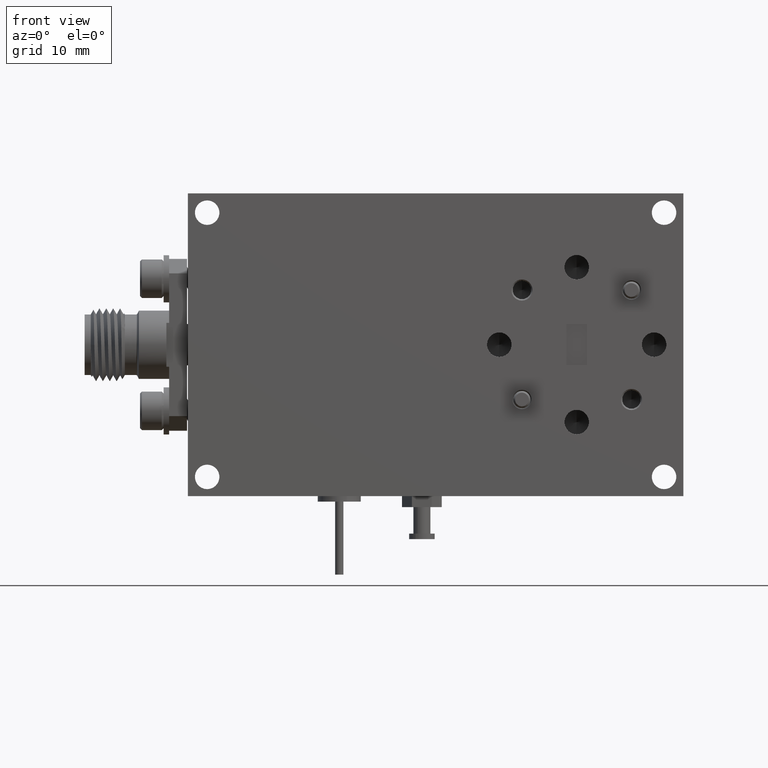
[diagram: clean part render]
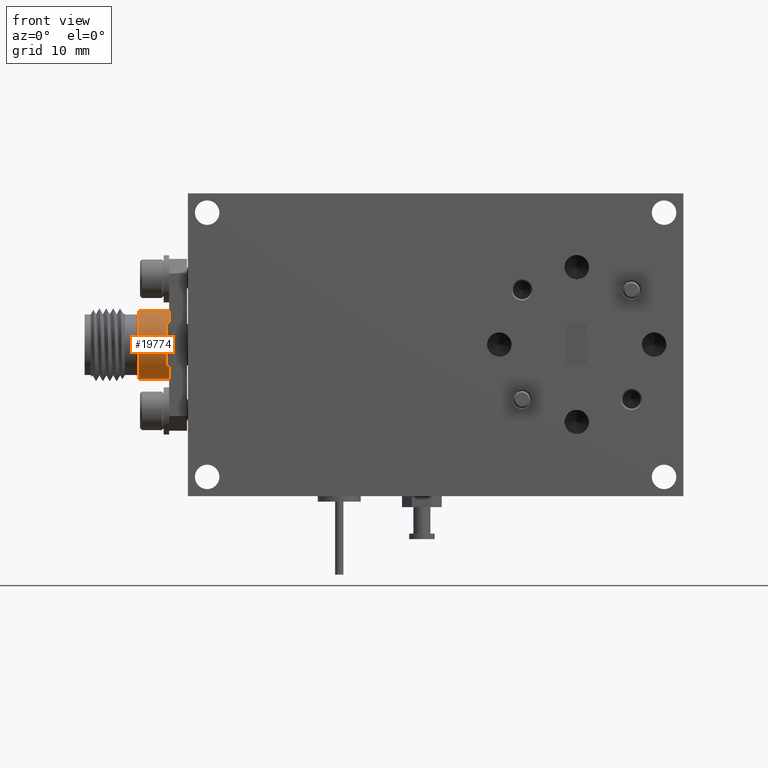
[diagram: same view with one face highlighted and labeled with its STEP entity id]
A machine part, front view. The second image highlights one B-rep face of the part: STEP entity #19774.
In plain terms, the highlighted cylindrical surface (edge-blend (fillet) strip) has radius 3.1496 mm, axis along (1, -0, -0).
Its self-contained STEP definition (entity closure, byte-faithful):
#63 = VECTOR ( 'NONE', #16802, 39.37007874015748100 ) ;
#252 = ORIENTED_EDGE ( 'NONE', *, *, #10622, .T. ) ;
#484 = LINE ( 'NONE', #10296, #23290 ) ;
#545 = AXIS2_PLACEMENT_3D ( 'NONE', #10329, #21840, #15262 ) ;
#764 = CARTESIAN_POINT ( 'NONE',  ( -1.088000000000000300, 0.2500000000000003900, -0.1240000000000001800 ) ) ;
#1017 = DIRECTION ( 'NONE',  ( 0.0000000000000000000, 0.0000000000000000000, 1.000000000000000000 ) ) ;
#1118 = DIRECTION ( 'NONE',  ( 1.000000000000000000, -1.110223024625162000E-016, -1.595945597898664000E-016 ) ) ;
#1374 = EDGE_CURVE ( 'NONE', #27436, #22943, #9861, .T. ) ;
#1703 = ORIENTED_EDGE ( 'NONE', *, *, #11419, .T. ) ;
#1708 = VERTEX_POINT ( 'NONE', #17510 ) ;
#2512 = DIRECTION ( 'NONE',  ( 0.0000000000000000000, 0.0000000000000000000, 1.000000000000000000 ) ) ;
#3259 = CARTESIAN_POINT ( 'NONE',  ( -1.078000000000000300, 0.2500000000000003900, 0.1240000000000000700 ) ) ;
#3465 = VECTOR ( 'NONE', #12232, 39.37007874015748100 ) ;
#3929 = CARTESIAN_POINT ( 'NONE',  ( -0.9680000000000005300, 0.2500000000000003900, 6.874722794536055900E-017 ) ) ;
#4830 = ORIENTED_EDGE ( 'NONE', *, *, #18331, .F. ) ;
#5823 = CARTESIAN_POINT ( 'NONE',  ( -0.9780000000000002000, 0.1550000000000000500, 0.07969316156358732800 ) ) ;
#6394 = CIRCLE ( 'NONE', #545, 0.1240000000000002500 ) ;
#7707 = EDGE_CURVE ( 'NONE', #10244, #29496, #6394, .T. ) ;
#8097 = CIRCLE ( 'NONE', #11469, 0.1240000000000002500 ) ;
#9250 = ORIENTED_EDGE ( 'NONE', *, *, #24281, .T. ) ;
#9463 = CARTESIAN_POINT ( 'NONE',  ( -1.078000000000000300, 0.2500000000000003900, -0.1239999999999999300 ) ) ;
#9861 = LINE ( 'NONE', #764, #3465 ) ;
#10244 = VERTEX_POINT ( 'NONE', #29063 ) ;
#10279 = CARTESIAN_POINT ( 'NONE',  ( -0.9680000000000005300, 0.1550000000000000500, 0.07969316156358732800 ) ) ;
#10296 = CARTESIAN_POINT ( 'NONE',  ( -0.9780000000000002000, 0.1550000000000000500, -0.07969316156358705000 ) ) ;
#10329 = CARTESIAN_POINT ( 'NONE',  ( -0.9780000000000002000, 0.2500000000000003900, 6.881661688439961800E-017 ) ) ;
#10622 = EDGE_CURVE ( 'NONE', #18508, #23821, #18206, .T. ) ;
#10827 = ORIENTED_EDGE ( 'NONE', *, *, #7707, .T. ) ;
#11419 = EDGE_CURVE ( 'NONE', #29496, #18508, #12201, .T. ) ;
#11469 = AXIS2_PLACEMENT_3D ( 'NONE', #19398, #1118, #1017 ) ;
#11732 = LINE ( 'NONE', #12170, #18445 ) ;
#12006 = ORIENTED_EDGE ( 'NONE', *, *, #25582, .F. ) ;
#12170 = CARTESIAN_POINT ( 'NONE',  ( -1.088000000000000300, 0.2500000000000003900, 0.1240000000000003200 ) ) ;
#12201 = LINE ( 'NONE', #5823, #63 ) ;
#12232 = DIRECTION ( 'NONE',  ( 1.000000000000000000, -1.110223024625162000E-016, -1.179611963664230300E-016 ) ) ;
#12814 = EDGE_LOOP ( 'NONE', ( #4830, #21460, #15519, #9250, #12006, #10827, #1703, #252 ) ) ;
#13959 = DIRECTION ( 'NONE',  ( -1.000000000000000000, 1.110223024625162000E-016, 1.595945597898664000E-016 ) ) ;
#14182 = FACE_OUTER_BOUND ( 'NONE', #12814, .T. ) ;
#15042 = DIRECTION ( 'NONE',  ( 1.000000000000000000, -1.110223024625162000E-016, -1.595945597898664000E-016 ) ) ;
#15262 = DIRECTION ( 'NONE',  ( 0.0000000000000000000, 0.0000000000000000000, 1.000000000000000000 ) ) ;
#15519 = ORIENTED_EDGE ( 'NONE', *, *, #1374, .T. ) ;
#16092 = CARTESIAN_POINT ( 'NONE',  ( -0.9780000000000002000, 0.1549999999999999200, 0.07969316156358732800 ) ) ;
#16802 = DIRECTION ( 'NONE',  ( 1.000000000000000000, -1.110223024625162000E-016, -1.595945597898664000E-016 ) ) ;
#16942 = VERTEX_POINT ( 'NONE', #3259 ) ;
#17510 = CARTESIAN_POINT ( 'NONE',  ( -0.9680000000000005300, 0.1550000000000001900, -0.07969316156358705000 ) ) ;
#18206 = CIRCLE ( 'NONE', #23874, 0.1240000000000002500 ) ;
#18331 = EDGE_CURVE ( 'NONE', #16942, #23821, #11732, .T. ) ;
#18445 = VECTOR ( 'NONE', #25734, 39.37007874015748100 ) ;
#18508 = VERTEX_POINT ( 'NONE', #10279 ) ;
#18593 = CARTESIAN_POINT ( 'NONE',  ( -0.9680000000000005300, 0.2500000000000003900, 6.874722794536055900E-017 ) ) ;
#18945 = AXIS2_PLACEMENT_3D ( 'NONE', #3929, #21905, #24124 ) ;
#19398 = CARTESIAN_POINT ( 'NONE',  ( -1.078000000000000300, 0.2500000000000005600, 6.951050627479033800E-017 ) ) ;
#19774 = ADVANCED_FACE ( 'NONE', ( #14182 ), #26620, .T. ) ;
#21172 = CIRCLE ( 'NONE', #18945, 0.1240000000000002500 ) ;
#21278 = EDGE_CURVE ( 'NONE', #16942, #27436, #8097, .T. ) ;
#21460 = ORIENTED_EDGE ( 'NONE', *, *, #21278, .T. ) ;
#21840 = DIRECTION ( 'NONE',  ( -1.000000000000000000, 1.110223024625162000E-016, 1.595945597898664000E-016 ) ) ;
#21905 = DIRECTION ( 'NONE',  ( -1.000000000000000000, 1.110223024625162000E-016, 1.595945597898664000E-016 ) ) ;
#22325 = AXIS2_PLACEMENT_3D ( 'NONE', #24721, #29303, #29401 ) ;
#22943 = VERTEX_POINT ( 'NONE', #24537 ) ;
#23290 = VECTOR ( 'NONE', #15042, 39.37007874015748100 ) ;
#23821 = VERTEX_POINT ( 'NONE', #24273 ) ;
#23874 = AXIS2_PLACEMENT_3D ( 'NONE', #18593, #13959, #2512 ) ;
#24124 = DIRECTION ( 'NONE',  ( 0.0000000000000000000, 0.0000000000000000000, 1.000000000000000000 ) ) ;
#24273 = CARTESIAN_POINT ( 'NONE',  ( -0.9680000000000005300, 0.2500000000000003900, 0.1240000000000000700 ) ) ;
#24281 = EDGE_CURVE ( 'NONE', #22943, #1708, #21172, .T. ) ;
#24537 = CARTESIAN_POINT ( 'NONE',  ( -0.9680000000000005300, 0.2500000000000003900, -0.1239999999999999300 ) ) ;
#24721 = CARTESIAN_POINT ( 'NONE',  ( -1.088000000000000300, 0.2500000000000003900, 6.957989521382942100E-017 ) ) ;
#25582 = EDGE_CURVE ( 'NONE', #10244, #1708, #484, .T. ) ;
#25734 = DIRECTION ( 'NONE',  ( 1.000000000000000000, -1.110223024625162000E-016, -1.179611963664230300E-016 ) ) ;
#26620 = CYLINDRICAL_SURFACE ( 'NONE', #22325, 0.1240000000000002500 ) ;
#27436 = VERTEX_POINT ( 'NONE', #9463 ) ;
#29063 = CARTESIAN_POINT ( 'NONE',  ( -0.9780000000000002000, 0.1550000000000000500, -0.07969316156358705000 ) ) ;
#29303 = DIRECTION ( 'NONE',  ( 1.000000000000000000, -1.110223024625162000E-016, -1.179611963664230300E-016 ) ) ;
#29401 = DIRECTION ( 'NONE',  ( 0.0000000000000000000, 0.0000000000000000000, -1.000000000000000000 ) ) ;
#29496 = VERTEX_POINT ( 'NONE', #16092 ) ;